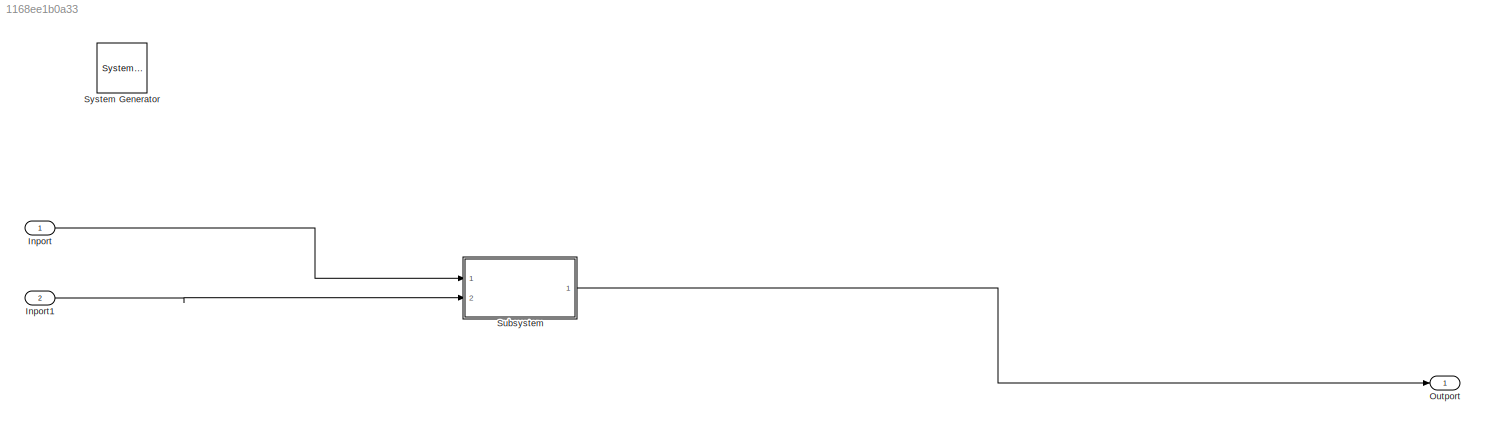
MODEL slx_1168ee1b0a33
KIND model
CONFIG AbsTol = auto
CONFIG EnableMultiTasking = off
CONFIG FixedStep = auto
CONFIG MaxStep = auto
CONFIG MinStep = auto
CONFIG RelTol = 1e-3
CONFIG SampleTimeConstraint = Unconstrained
CONFIG Solver = VariableStepAuto
CONFIG SolverName = VariableStepAuto
CONFIG StartTime = 0.0
CONFIG StopTime = 500
BLOCK [Reference]  System Generator  REF=xbsIndex_r4/ System Generator
  AttributesFormatString = System\nGenerator
  Ports = []
  SourceBlock = xbsIndex_r4/ System Generator
  SourceType = Xilinx System Generator Block
  Tag = genX
  UserDataPersistent = on
BLOCK [Inport] Inport
BLOCK [Inport] Inport1
  Port = 2
BLOCK [Outport] Outport
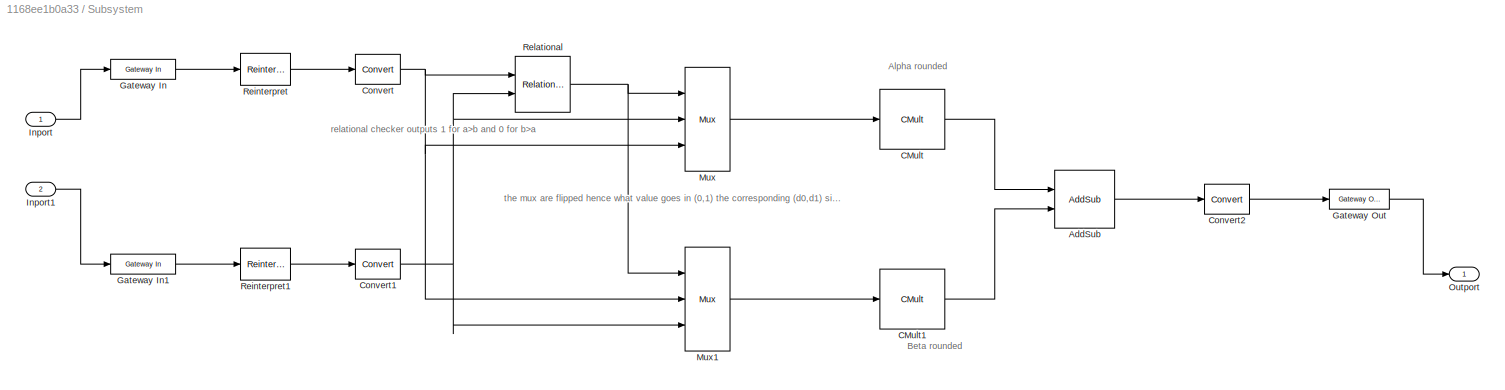
BLOCK [SubSystem] Subsystem
  Ports = [2, 1]
  RequestExecContextInheritance = off
BLOCK [Reference] Subsystem/AddSub  REF=xbsIndex_r4/AddSub
  Ports = [2, 1]
  SourceBlock = xbsIndex_r4/AddSub
  SourceType = Xilinx Adder/Subtracter Block
BLOCK [Reference] Subsystem/CMult  REF=xbsIndex_r4/CMult
  Ports = [1, 1]
  SourceBlock = xbsIndex_r4/CMult
  SourceType = Xilinx Constant Multiplier Block
BLOCK [Reference] Subsystem/CMult1  REF=xbsIndex_r4/CMult
  Ports = [1, 1]
  SourceBlock = xbsIndex_r4/CMult
  SourceType = Xilinx Constant Multiplier Block
BLOCK [Reference] Subsystem/Convert  REF=xbsIndex_r4/Convert
  Ports = [1, 1]
  SourceBlock = xbsIndex_r4/Convert
  SourceType = Xilinx Type Converter Block
BLOCK [Reference] Subsystem/Convert1  REF=xbsIndex_r4/Convert
  Ports = [1, 1]
  SourceBlock = xbsIndex_r4/Convert
  SourceType = Xilinx Type Converter Block
BLOCK [Reference] Subsystem/Convert2  REF=xbsIndex_r4/Convert
  Ports = [1, 1]
  SourceBlock = xbsIndex_r4/Convert
  SourceType = Xilinx Type Converter Block
BLOCK [Reference] Subsystem/Gateway In  REF=xbsIndex_r4/Gateway In
  Ports = [1, 1]
  SourceBlock = xbsIndex_r4/Gateway In
  SourceType = Xilinx Gateway In Block
BLOCK [Reference] Subsystem/Gateway In1  REF=xbsIndex_r4/Gateway In
  Ports = [1, 1]
  SourceBlock = xbsIndex_r4/Gateway In
  SourceType = Xilinx Gateway In Block
BLOCK [Reference] Subsystem/Gateway Out  REF=xbsIndex_r4/Gateway Out
  Ports = [1, 1]
  SourceBlock = xbsIndex_r4/Gateway Out
  SourceType = Xilinx Gateway Out Block
BLOCK [Inport] Subsystem/Inport
BLOCK [Inport] Subsystem/Inport1
  Port = 2
BLOCK [Reference] Subsystem/Mux  REF=xbsIndex_r4/Mux
  Ports = [3, 1]
  SourceBlock = xbsIndex_r4/Mux
  SourceType = Xilinx Bus Multiplexer Block
BLOCK [Reference] Subsystem/Mux1  REF=xbsIndex_r4/Mux
  Ports = [3, 1]
  SourceBlock = xbsIndex_r4/Mux
  SourceType = Xilinx Bus Multiplexer Block
BLOCK [Outport] Subsystem/Outport
BLOCK [Reference] Subsystem/Reinterpret  REF=xbsIndex_r4/Reinterpret
  Ports = [1, 1]
  SourceBlock = xbsIndex_r4/Reinterpret
  SourceType = Xilinx Type Reinterpreter Block
BLOCK [Reference] Subsystem/Reinterpret1  REF=xbsIndex_r4/Reinterpret
  Ports = [1, 1]
  SourceBlock = xbsIndex_r4/Reinterpret
  SourceType = Xilinx Type Reinterpreter Block
BLOCK [Reference] Subsystem/Relational  REF=xbsIndex_r4/Relational
  Ports = [2, 1]
  SourceBlock = xbsIndex_r4/Relational
  SourceType = Xilinx Arithmetic Relational Operator Block
ANNOTATION Subsystem: Alpha rounded
ANNOTATION Subsystem: Beta rounded
ANNOTATION Subsystem: relational checker outputs 1 for a>b and 0 for b>a
ANNOTATION Subsystem: the mux are flipped hence what value goes in (0,1) the corresponding (d0,d1) signal will be passed through
LINE Inport1:1 -> Subsystem:2
LINE Inport:1 -> Subsystem:1
LINE Subsystem/AddSub:1 -> Subsystem/Convert2:1
LINE Subsystem/CMult1:1 -> Subsystem/AddSub:2
LINE Subsystem/CMult:1 -> Subsystem/AddSub:1
NET Subsystem/Convert1:1 -> Subsystem/Mux1:3, Subsystem/Mux:2, Subsystem/Relational:2
LINE Subsystem/Convert2:1 -> Subsystem/Gateway Out:1
NET Subsystem/Convert:1 -> Subsystem/Mux1:2, Subsystem/Mux:3, Subsystem/Relational:1
LINE Subsystem/Gateway In1:1 -> Subsystem/Reinterpret1:1
LINE Subsystem/Gateway In:1 -> Subsystem/Reinterpret:1
LINE Subsystem/Gateway Out:1 -> Subsystem/Outport:1
LINE Subsystem/Inport1:1 -> Subsystem/Gateway In1:1
LINE Subsystem/Inport:1 -> Subsystem/Gateway In:1
LINE Subsystem/Mux1:1 -> Subsystem/CMult1:1
LINE Subsystem/Mux:1 -> Subsystem/CMult:1
LINE Subsystem/Reinterpret1:1 -> Subsystem/Convert1:1
LINE Subsystem/Reinterpret:1 -> Subsystem/Convert:1
NET Subsystem/Relational:1 -> Subsystem/Mux1:1, Subsystem/Mux:1
LINE Subsystem:1 -> Outport:1
note: NET lines group one-source signal fan-out (src -> all destinations, sorted); 1:1 wires keep LINE
